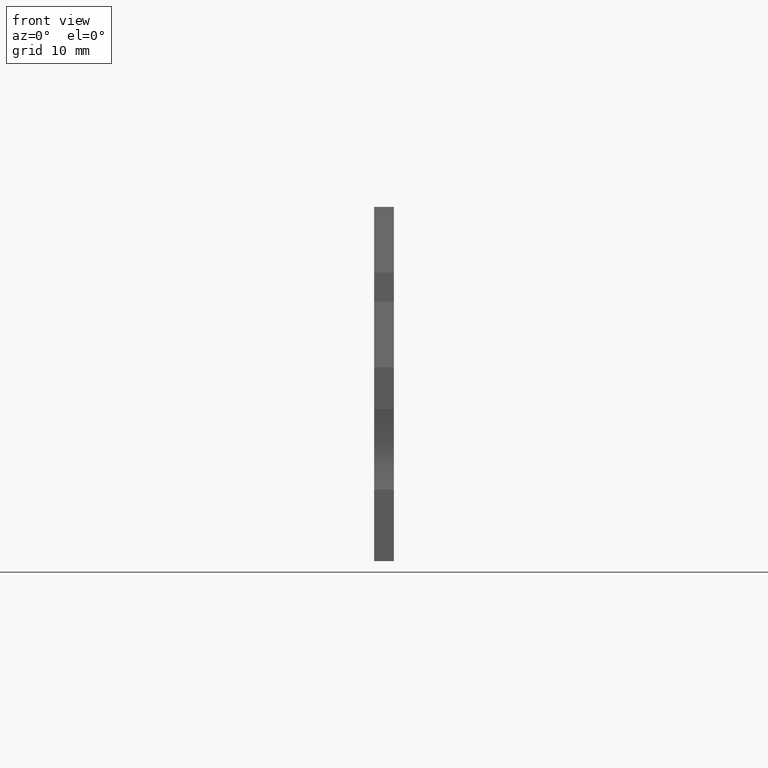
[diagram: clean part render]
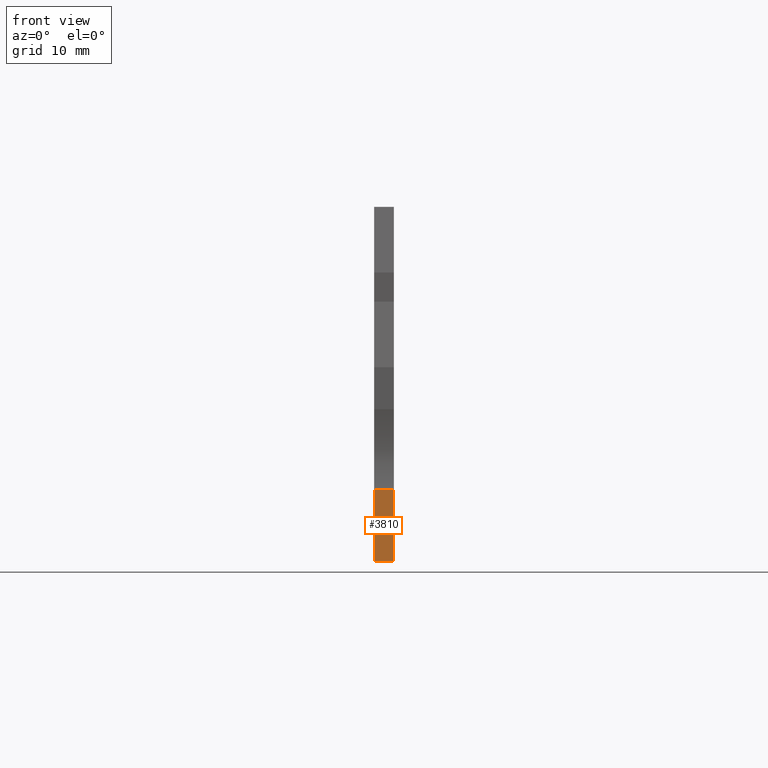
[diagram: same view with one face highlighted and labeled with its STEP entity id]
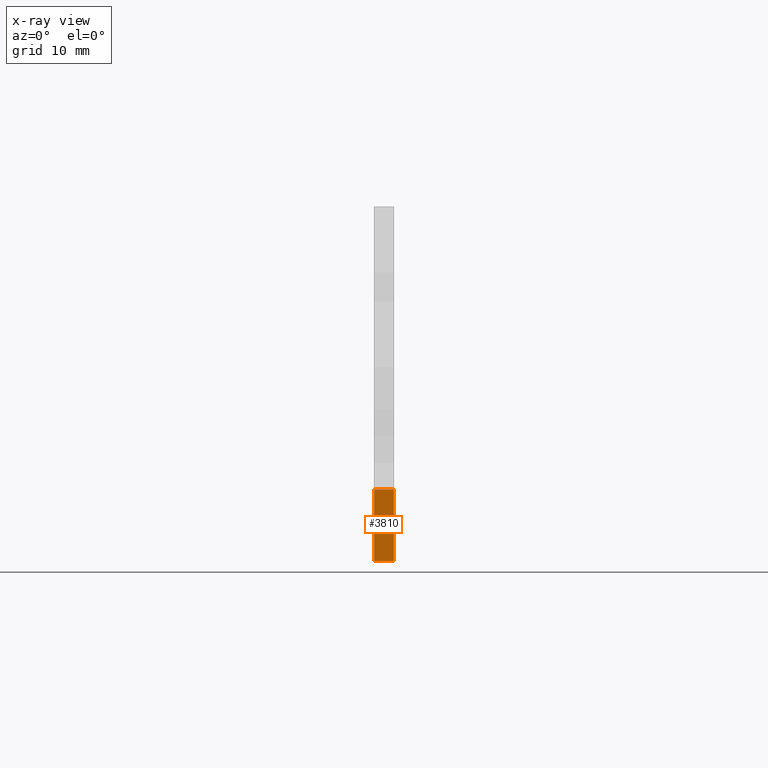
[diagram: x-ray of the same camera — body ghosted, the highlighted face saturated]
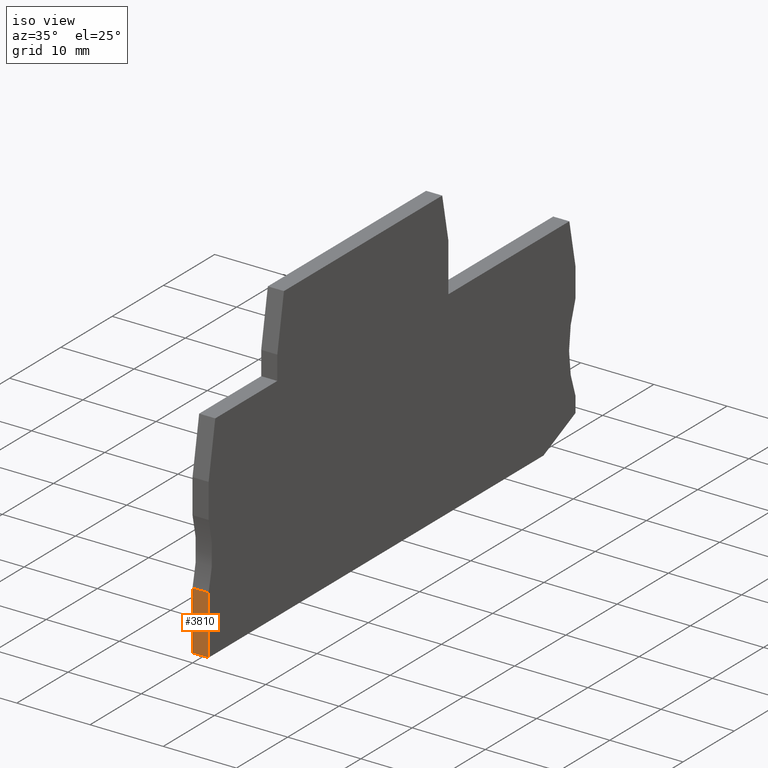
[diagram: same view with one face highlighted and labeled with its STEP entity id]
A machine part, front view. The second image highlights one B-rep face of the part: STEP entity #3810.
The next image is the same camera in x-ray: the body ghosted, the highlighted face saturated — about 0% of this face is hidden behind the body in this view.
A second angle (iso view) of the same face is appended — the face is thin or edge-on in the first view.
In plain terms, the highlighted planar face has unit normal (-0, -1, -0).
Its self-contained STEP definition (entity closure, byte-faithful):
#690=CARTESIAN_POINT('',(47.8573958538972,-30.2000000000048,53.67));
#700=VERTEX_POINT('',#690);
#730=CARTESIAN_POINT('',(47.8573958538972,-11.94298,53.67));
#740=DIRECTION('',(4.65275954243089E-17,1.,0.));
#750=VECTOR('',#740,1.);
#760=LINE('',#730,#750);
#770=CARTESIAN_POINT('',(47.8573958538972,-38.2000000000016,53.67));
#780=VERTEX_POINT('',#770);
#790=EDGE_CURVE('',#780,#700,#760,.T.);
#2220=CARTESIAN_POINT('',(47.8573958538972,-38.2000000000016,55.87));
#2230=VERTEX_POINT('',#2220);
#2260=CARTESIAN_POINT('',(47.8573958538972,-11.94298,55.87));
#2270=DIRECTION('',(4.65275954243089E-17,1.,0.));
#2280=VECTOR('',#2270,1.);
#2290=LINE('',#2260,#2280);
#2300=CARTESIAN_POINT('',(47.8573958538972,-30.2000000000048,55.87));
#2310=VERTEX_POINT('',#2300);
#2320=EDGE_CURVE('',#2230,#2310,#2290,.T.);
#3200=CARTESIAN_POINT('',(47.8573958538972,-30.2000000000048,53.67));
#3210=DIRECTION('',(0.,0.,-1.));
#3220=VECTOR('',#3210,1.);
#3230=LINE('',#3200,#3220);
#3240=EDGE_CURVE('',#2310,#700,#3230,.T.);
#3650=CARTESIAN_POINT('',(47.8573958538972,-34.2000000000016,53.67));
#3660=DIRECTION('',(-1.,4.65275954243089E-17,0.));
#3670=DIRECTION('',(-4.65275954243089E-17,-1.,0.));
#3680=AXIS2_PLACEMENT_3D('',#3650,#3660,#3670);
#3690=PLANE('',#3680);
#3700=ORIENTED_EDGE('',*,*,#3240,.T.);
#3710=ORIENTED_EDGE('',*,*,#2320,.T.);
#3720=CARTESIAN_POINT('',(47.8573958538972,-38.2000000000016,53.67));
#3730=DIRECTION('',(0.,0.,-1.));
#3740=VECTOR('',#3730,1.);
#3750=LINE('',#3720,#3740);
#3760=EDGE_CURVE('',#2230,#780,#3750,.T.);
#3770=ORIENTED_EDGE('',*,*,#3760,.F.);
#3780=ORIENTED_EDGE('',*,*,#790,.F.);
#3790=EDGE_LOOP('',(#3780,#3770,#3710,#3700));
#3800=FACE_OUTER_BOUND('',#3790,.T.);
#3810=ADVANCED_FACE('',(#3800),#3690,.T.);